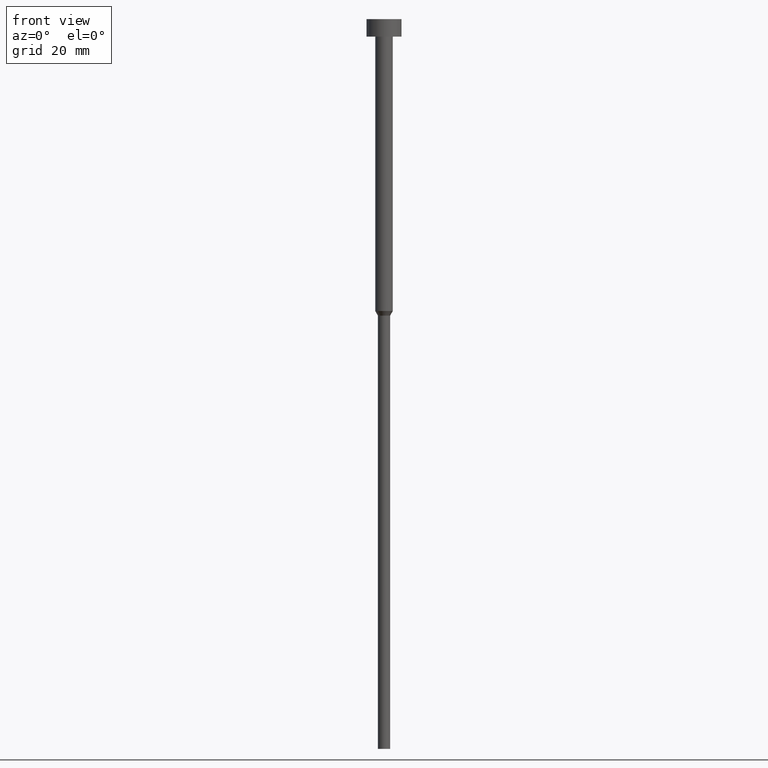
[diagram: clean part render]
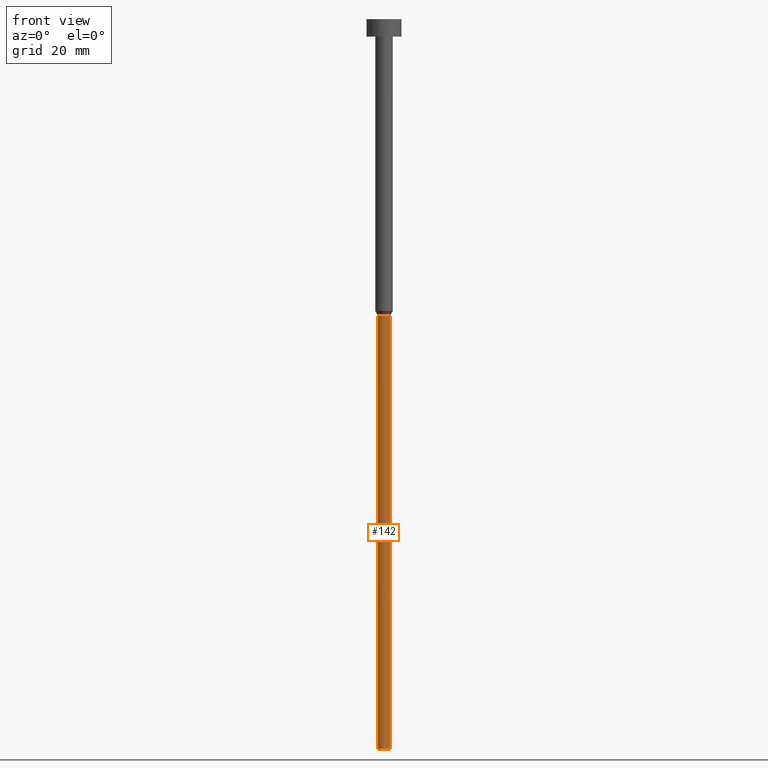
[diagram: same view with one face highlighted and labeled with its STEP entity id]
A machine part, front view. The second image highlights one B-rep face of the part: STEP entity #142.
In plain terms, the highlighted cylindrical surface (edge-blend (fillet) strip) has radius 1.05 mm, axis along (-0, -0, 1).
Its self-contained STEP definition (entity closure, byte-faithful):
#34 = ORIENTED_EDGE ( 'NONE', *, *, #138, .F. ) ;
#40 = DIRECTION ( 'NONE',  ( -0.000000000000000000, -0.000000000000000000, 1.000000000000000000 ) ) ;
#48 = EDGE_CURVE ( 'NONE', #299, #352, #154, .T. ) ;
#56 = CYLINDRICAL_SURFACE ( 'NONE', #114, 1.050000000000000044 ) ;
#64 = CARTESIAN_POINT ( 'NONE',  ( 0.000000000000000000, 0.000000000000000000, -125.0000000000000000 ) ) ;
#83 = DIRECTION ( 'NONE',  ( -0.000000000000000000, -0.000000000000000000, 1.000000000000000000 ) ) ;
#114 = AXIS2_PLACEMENT_3D ( 'NONE', #162, #245, #210 ) ;
#138 = EDGE_CURVE ( 'NONE', #278, #299, #325, .T. ) ;
#142 = ADVANCED_FACE ( 'NONE', ( #190 ), #56, .T. ) ;
#147 = DIRECTION ( 'NONE',  ( 1.000000000000000000, 0.000000000000000000, 0.000000000000000000 ) ) ;
#153 = CARTESIAN_POINT ( 'NONE',  ( 0.000000000000000000, 0.000000000000000000, -50.77942286340599765 ) ) ;
#154 = CIRCLE ( 'NONE', #349, 1.050000000000000044 ) ;
#162 = CARTESIAN_POINT ( 'NONE',  ( 0.000000000000000000, 0.000000000000000000, 0.000000000000000000 ) ) ;
#166 = CIRCLE ( 'NONE', #257, 1.050000000000000044 ) ;
#168 = CARTESIAN_POINT ( 'NONE',  ( -1.050000000000000044, 1.285879139104720978E-16, -50.77942286340599765 ) ) ;
#173 = CARTESIAN_POINT ( 'NONE',  ( -1.050000000000000044, 1.285879139104720978E-16, -125.0000000000000000 ) ) ;
#174 = EDGE_LOOP ( 'NONE', ( #34, #317, #273, #281 ) ) ;
#187 = DIRECTION ( 'NONE',  ( -0.000000000000000000, -0.000000000000000000, 1.000000000000000000 ) ) ;
#190 = FACE_OUTER_BOUND ( 'NONE', #174, .T. ) ;
#194 = CARTESIAN_POINT ( 'NONE',  ( 1.050000000000000044, 0.000000000000000000, -125.0000000000000000 ) ) ;
#199 = DIRECTION ( 'NONE',  ( -0.000000000000000000, -0.000000000000000000, 1.000000000000000000 ) ) ;
#210 = DIRECTION ( 'NONE',  ( 1.000000000000000000, 0.000000000000000000, 0.000000000000000000 ) ) ;
#211 = EDGE_CURVE ( 'NONE', #278, #230, #166, .T. ) ;
#230 = VERTEX_POINT ( 'NONE', #194 ) ;
#231 = CARTESIAN_POINT ( 'NONE',  ( 1.050000000000000044, 0.000000000000000000, -50.77942286340599765 ) ) ;
#245 = DIRECTION ( 'NONE',  ( -0.000000000000000000, -0.000000000000000000, 1.000000000000000000 ) ) ;
#257 = AXIS2_PLACEMENT_3D ( 'NONE', #64, #40, #147 ) ;
#273 = ORIENTED_EDGE ( 'NONE', *, *, #298, .T. ) ;
#278 = VERTEX_POINT ( 'NONE', #173 ) ;
#280 = LINE ( 'NONE', #354, #286 ) ;
#281 = ORIENTED_EDGE ( 'NONE', *, *, #48, .F. ) ;
#286 = VECTOR ( 'NONE', #199, 1000.000000000000000 ) ;
#291 = DIRECTION ( 'NONE',  ( 1.000000000000000000, 0.000000000000000000, 0.000000000000000000 ) ) ;
#298 = EDGE_CURVE ( 'NONE', #230, #352, #280, .T. ) ;
#299 = VERTEX_POINT ( 'NONE', #168 ) ;
#317 = ORIENTED_EDGE ( 'NONE', *, *, #211, .T. ) ;
#321 = VECTOR ( 'NONE', #83, 1000.000000000000000 ) ;
#325 = LINE ( 'NONE', #328, #321 ) ;
#328 = CARTESIAN_POINT ( 'NONE',  ( -1.050000000000000044, 1.285879139104720978E-16, 0.000000000000000000 ) ) ;
#349 = AXIS2_PLACEMENT_3D ( 'NONE', #153, #187, #291 ) ;
#352 = VERTEX_POINT ( 'NONE', #231 ) ;
#354 = CARTESIAN_POINT ( 'NONE',  ( 1.050000000000000044, 0.000000000000000000, 0.000000000000000000 ) ) ;